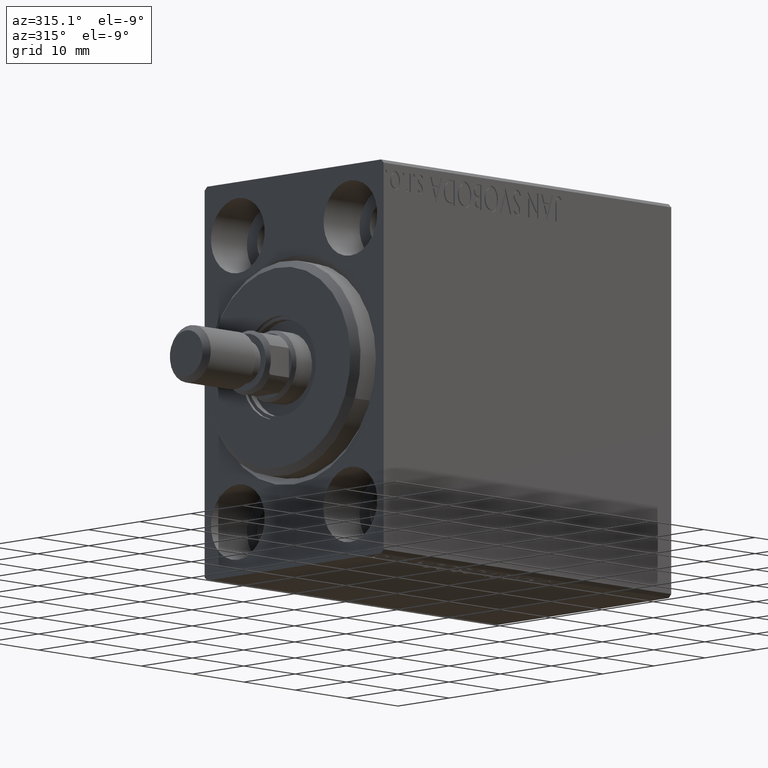
[diagram: clean part render]
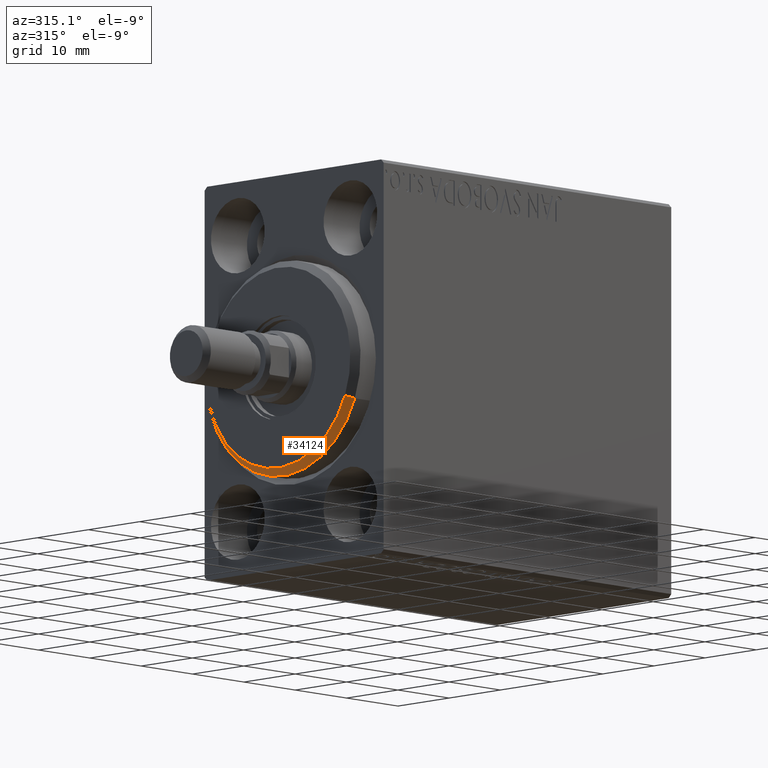
[diagram: same view with one face highlighted and labeled with its STEP entity id]
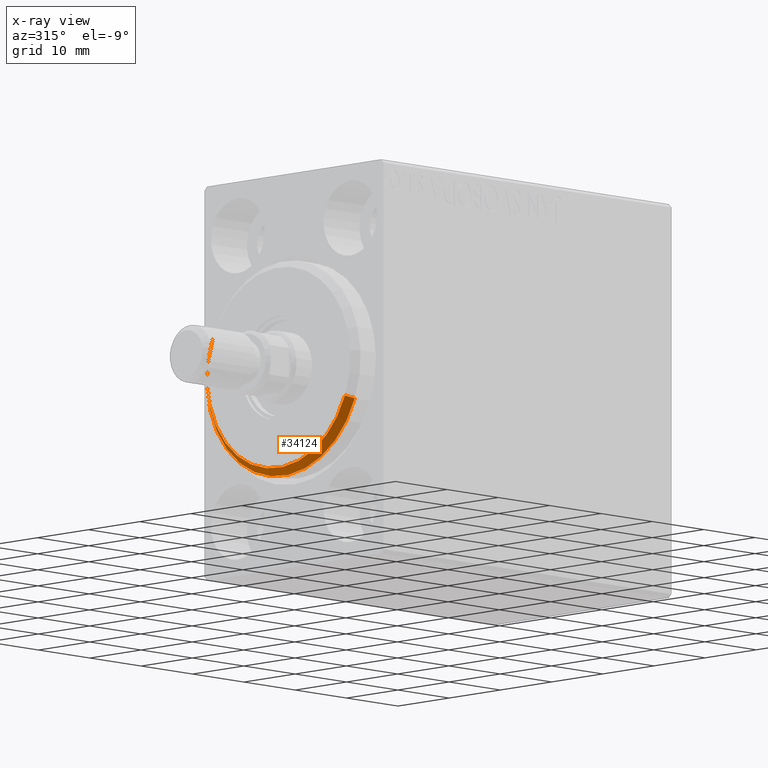
[diagram: x-ray of the same camera — body ghosted, the highlighted face saturated]
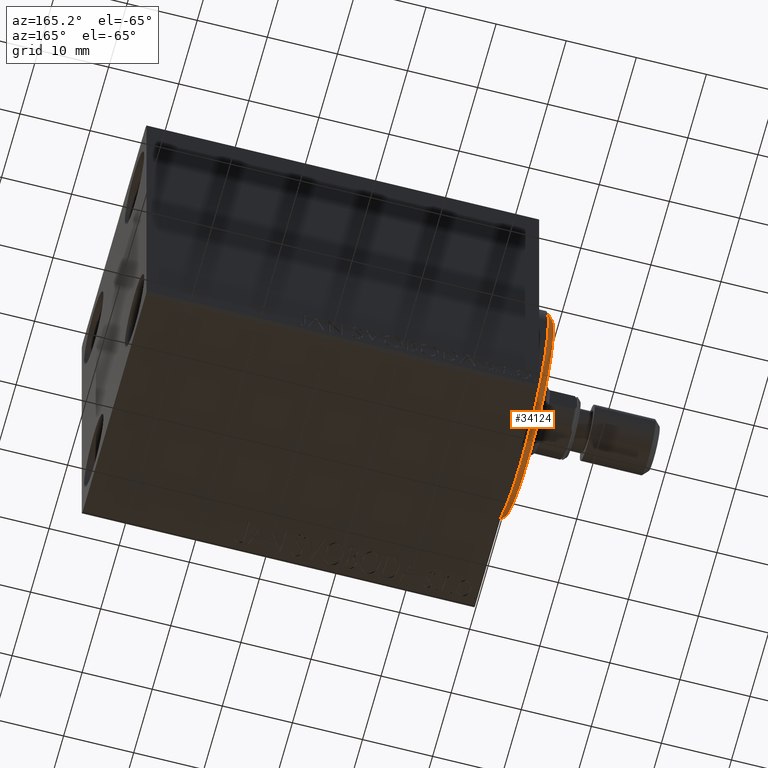
[diagram: same view with one face highlighted and labeled with its STEP entity id]
A machine part, auxiliary view. The second image highlights one B-rep face of the part: STEP entity #34124.
The next image is the same camera in x-ray: the body ghosted, the highlighted face saturated — about 0% of this face is hidden behind the body in this view.
A second angle (auxiliary view) of the same face is appended — the face is thin or edge-on in the first view.
In plain terms, the highlighted conical surface has half-angle 45 deg.
Its self-contained STEP definition (entity closure, byte-faithful):
#260 = AXIS2_PLACEMENT_3D ( 'NONE', #8170, #7737, #35825 ) ;
#964 = EDGE_CURVE ( 'NONE', #35840, #9277, #20188, .T. ) ;
#1539 = EDGE_LOOP ( 'NONE', ( #10535, #15616, #14171, #27341 ) ) ;
#2301 = VERTEX_POINT ( 'NONE', #23899 ) ;
#7737 = DIRECTION ( 'NONE',  ( 1.000000000000000000, -0.000000000000000000, 0.000000000000000000 ) ) ;
#8170 = CARTESIAN_POINT ( 'NONE',  ( 3.000000000000000000, 0.000000000000000000, 0.000000000000000000 ) ) ;
#9195 = DIRECTION ( 'NONE',  ( 0.000000000000000000, 0.000000000000000000, -1.000000000000000000 ) ) ;
#9277 = VERTEX_POINT ( 'NONE', #35087 ) ;
#9420 = CARTESIAN_POINT ( 'NONE',  ( 1.999999999999995781, 0.000000000000000000, 0.000000000000000000 ) ) ;
#9464 = LINE ( 'NONE', #36886, #12133 ) ;
#9835 = DIRECTION ( 'NONE',  ( -0.7071067811865482389, 0.000000000000000000, 0.7071067811865469066 ) ) ;
#9973 = CARTESIAN_POINT ( 'NONE',  ( 3.000000000000000000, 1.775737858763662015E-15, -13.99999999999999645 ) ) ;
#10262 = AXIS2_PLACEMENT_3D ( 'NONE', #27459, #41178, #23868 ) ;
#10535 = ORIENTED_EDGE ( 'NONE', *, *, #36412, .F. ) ;
#12133 = VECTOR ( 'NONE', #22961, 999.9999999999998863 ) ;
#13507 = VECTOR ( 'NONE', #9835, 999.9999999999998863 ) ;
#14171 = ORIENTED_EDGE ( 'NONE', *, *, #28672, .F. ) ;
#15616 = ORIENTED_EDGE ( 'NONE', *, *, #24084, .T. ) ;
#16806 = CARTESIAN_POINT ( 'NONE',  ( 3.000000000000000000, 0.000000000000000000, 13.99999999999999645 ) ) ;
#18037 = AXIS2_PLACEMENT_3D ( 'NONE', #9420, #33691, #9195 ) ;
#20188 = LINE ( 'NONE', #16806, #13507 ) ;
#22961 = DIRECTION ( 'NONE',  ( -0.7071067811865482389, 8.659560562354926695E-17, -0.7071067811865469066 ) ) ;
#23868 = DIRECTION ( 'NONE',  ( 0.000000000000000000, 0.000000000000000000, 1.000000000000000000 ) ) ;
#23899 = CARTESIAN_POINT ( 'NONE',  ( 1.999999999999995781, 1.836970198721029589E-15, -15.00000000000000000 ) ) ;
#24084 = EDGE_CURVE ( 'NONE', #33034, #2301, #9464, .T. ) ;
#26796 = FACE_OUTER_BOUND ( 'NONE', #1539, .T. ) ;
#27341 = ORIENTED_EDGE ( 'NONE', *, *, #964, .F. ) ;
#27459 = CARTESIAN_POINT ( 'NONE',  ( 3.000000000000000000, 0.000000000000000000, 0.000000000000000000 ) ) ;
#28672 = EDGE_CURVE ( 'NONE', #9277, #2301, #33092, .T. ) ;
#29651 = CONICAL_SURFACE ( 'NONE', #10262, 13.99999999999999645, 0.7853981633974473908 ) ;
#33034 = VERTEX_POINT ( 'NONE', #9973 ) ;
#33092 = CIRCLE ( 'NONE', #18037, 15.00000000000000000 ) ;
#33691 = DIRECTION ( 'NONE',  ( -1.000000000000000000, 0.000000000000000000, 0.000000000000000000 ) ) ;
#34124 = ADVANCED_FACE ( 'NONE', ( #26796 ), #29651, .T. ) ;
#35087 = CARTESIAN_POINT ( 'NONE',  ( 1.999999999999995781, 0.000000000000000000, 15.00000000000000000 ) ) ;
#35825 = DIRECTION ( 'NONE',  ( 0.000000000000000000, 0.000000000000000000, -1.000000000000000000 ) ) ;
#35840 = VERTEX_POINT ( 'NONE', #39359 ) ;
#36165 = CIRCLE ( 'NONE', #260, 13.99999999999999645 ) ;
#36412 = EDGE_CURVE ( 'NONE', #33034, #35840, #36165, .T. ) ;
#36886 = CARTESIAN_POINT ( 'NONE',  ( 3.000000000000000000, 1.714505518806294244E-15, -13.99999999999999645 ) ) ;
#39359 = CARTESIAN_POINT ( 'NONE',  ( 3.000000000000000000, 0.000000000000000000, 13.99999999999999645 ) ) ;
#41178 = DIRECTION ( 'NONE',  ( -1.000000000000000000, 0.000000000000000000, 0.000000000000000000 ) ) ;